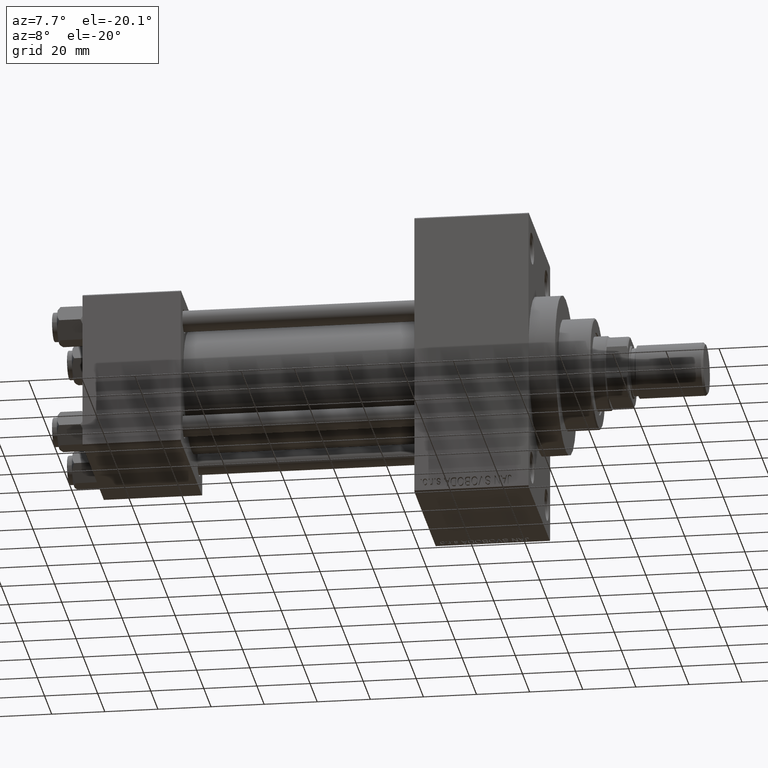
[diagram: clean part render]
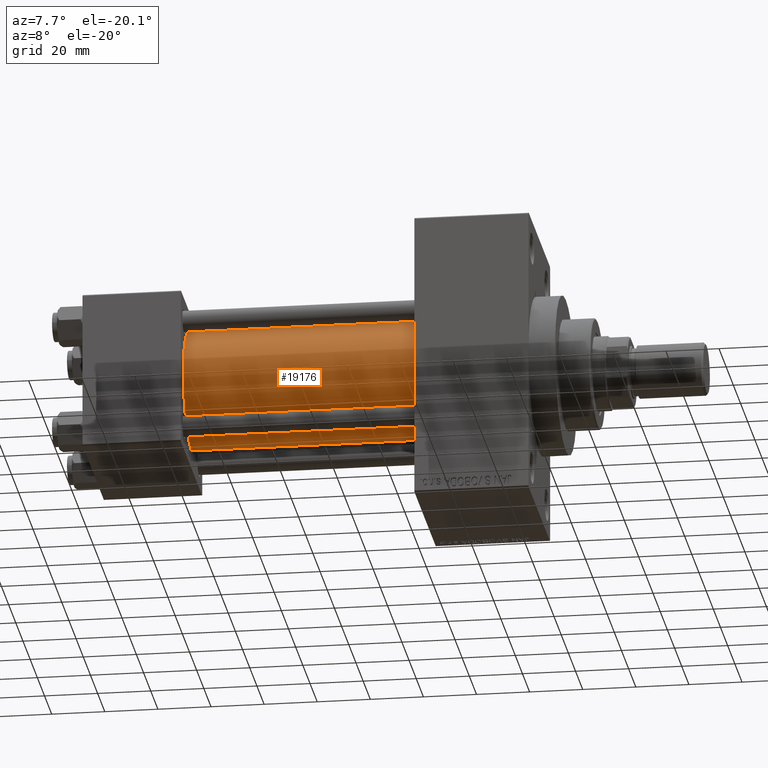
[diagram: same view with one face highlighted and labeled with its STEP entity id]
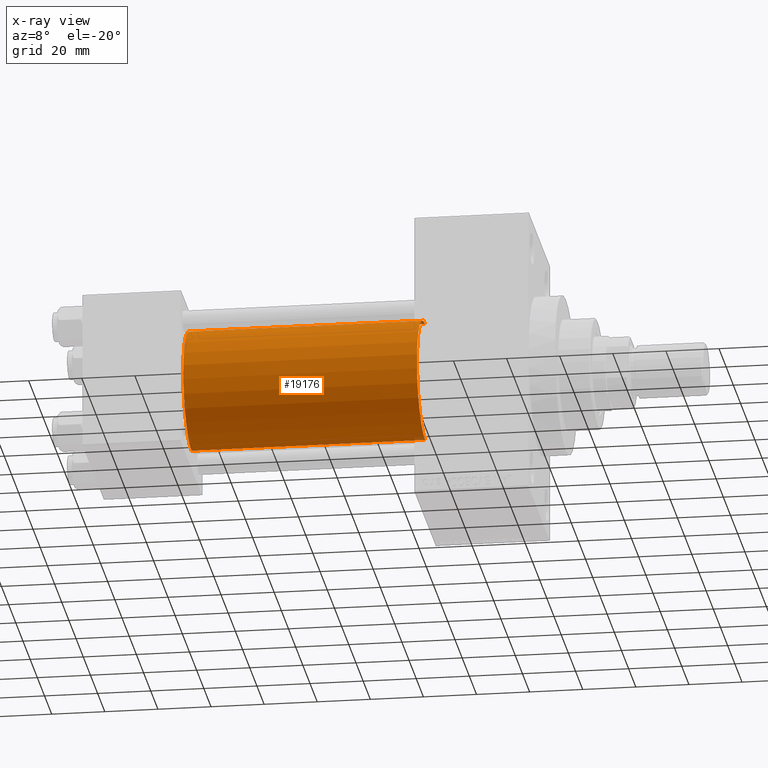
[diagram: x-ray of the same camera — body ghosted, the highlighted face saturated]
A machine part, auxiliary view. The second image highlights one B-rep face of the part: STEP entity #19176.
The next image is the same camera in x-ray: the body ghosted, the highlighted face saturated — about 0% of this face is hidden behind the body in this view.
In plain terms, the highlighted cylindrical surface (partial cylindrical patch) has radius 23 mm, axis along (-1, -0, -0).
Its self-contained STEP definition (entity closure, byte-faithful):
#1050 = AXIS2_PLACEMENT_3D ( 'NONE', #40356, #40822, #7789 ) ;
#1421 = CARTESIAN_POINT ( 'NONE',  ( 125.0000000000000000, 2.146024240737016609E-16, -23.00000000000000000 ) ) ;
#4257 = VERTEX_POINT ( 'NONE', #1421 ) ;
#4910 = CIRCLE ( 'NONE', #1050, 23.00000000000000000 ) ;
#5772 = DIRECTION ( 'NONE',  ( 0.000000000000000000, 0.000000000000000000, 1.000000000000000000 ) ) ;
#5912 = DIRECTION ( 'NONE',  ( -1.000000000000000000, -0.000000000000000000, -0.000000000000000000 ) ) ;
#7789 = DIRECTION ( 'NONE',  ( 0.000000000000000000, 0.000000000000000000, -1.000000000000000000 ) ) ;
#9064 = FACE_OUTER_BOUND ( 'NONE', #30743, .T. ) ;
#10953 = VECTOR ( 'NONE', #24070, 1000.000000000000000 ) ;
#12680 = CARTESIAN_POINT ( 'NONE',  ( 125.0000000000000000, -2.602085213965210642E-15, 0.000000000000000000 ) ) ;
#12838 = CARTESIAN_POINT ( 'NONE',  ( 37.00000000000000711, -2.602085213965210642E-15, 23.00000000000000000 ) ) ;
#14062 = CARTESIAN_POINT ( 'NONE',  ( 37.00000000000000711, 2.146024240737016609E-16, -23.00000000000000000 ) ) ;
#15131 = ORIENTED_EDGE ( 'NONE', *, *, #21309, .F. ) ;
#17316 = CARTESIAN_POINT ( 'NONE',  ( 125.0000000000000000, 2.146024240737016609E-16, -23.00000000000000000 ) ) ;
#19176 = ADVANCED_FACE ( 'NONE', ( #9064 ), #24706, .T. ) ;
#19928 = DIRECTION ( 'NONE',  ( -1.000000000000000000, -0.000000000000000000, -0.000000000000000000 ) ) ;
#20709 = CARTESIAN_POINT ( 'NONE',  ( 37.00000000000000711, -2.602085213965210642E-15, 0.000000000000000000 ) ) ;
#21309 = EDGE_CURVE ( 'NONE', #28287, #4257, #4910, .T. ) ;
#22030 = ORIENTED_EDGE ( 'NONE', *, *, #42816, .F. ) ;
#22204 = ORIENTED_EDGE ( 'NONE', *, *, #22492, .T. ) ;
#22492 = EDGE_CURVE ( 'NONE', #32192, #47665, #29474, .T. ) ;
#23778 = LINE ( 'NONE', #46199, #46718 ) ;
#24070 = DIRECTION ( 'NONE',  ( -1.000000000000000000, -0.000000000000000000, -0.000000000000000000 ) ) ;
#24706 = CYLINDRICAL_SURFACE ( 'NONE', #38704, 23.00000000000000000 ) ;
#28287 = VERTEX_POINT ( 'NONE', #35128 ) ;
#29474 = CIRCLE ( 'NONE', #34963, 23.00000000000000000 ) ;
#30743 = EDGE_LOOP ( 'NONE', ( #22030, #15131, #31403, #22204 ) ) ;
#31403 = ORIENTED_EDGE ( 'NONE', *, *, #31470, .T. ) ;
#31470 = EDGE_CURVE ( 'NONE', #28287, #32192, #23778, .T. ) ;
#31938 = DIRECTION ( 'NONE',  ( 0.000000000000000000, 0.000000000000000000, 1.000000000000000000 ) ) ;
#32192 = VERTEX_POINT ( 'NONE', #12838 ) ;
#34963 = AXIS2_PLACEMENT_3D ( 'NONE', #20709, #46758, #5772 ) ;
#35128 = CARTESIAN_POINT ( 'NONE',  ( 125.0000000000000000, -2.602085213965210642E-15, 23.00000000000000000 ) ) ;
#35178 = LINE ( 'NONE', #17316, #10953 ) ;
#38704 = AXIS2_PLACEMENT_3D ( 'NONE', #12680, #5912, #31938 ) ;
#40356 = CARTESIAN_POINT ( 'NONE',  ( 125.0000000000000000, -2.602085213965210642E-15, 0.000000000000000000 ) ) ;
#40822 = DIRECTION ( 'NONE',  ( 1.000000000000000000, 0.000000000000000000, 0.000000000000000000 ) ) ;
#42816 = EDGE_CURVE ( 'NONE', #4257, #47665, #35178, .T. ) ;
#46199 = CARTESIAN_POINT ( 'NONE',  ( 125.0000000000000000, -2.602085213965210642E-15, 23.00000000000000000 ) ) ;
#46718 = VECTOR ( 'NONE', #19928, 1000.000000000000000 ) ;
#46758 = DIRECTION ( 'NONE',  ( 1.000000000000000000, -0.000000000000000000, 0.000000000000000000 ) ) ;
#47665 = VERTEX_POINT ( 'NONE', #14062 ) ;